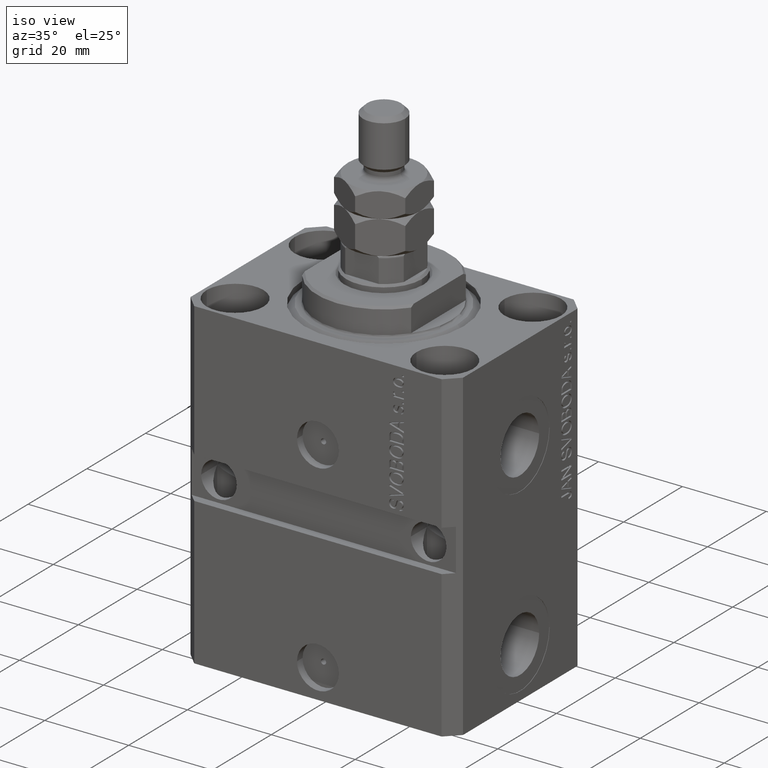
[diagram: clean part render]
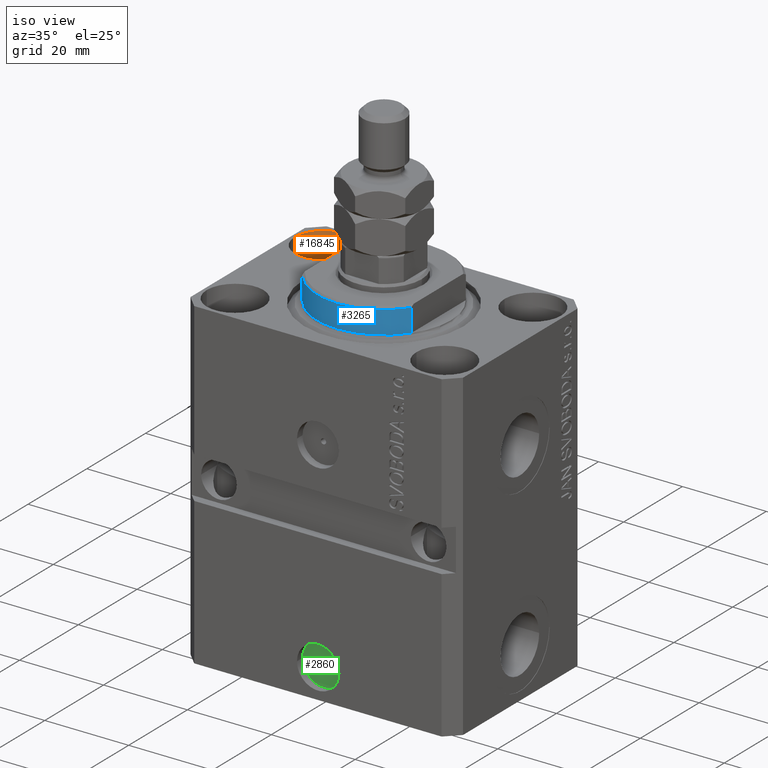
[diagram: same view with three faces highlighted in distinct colors, each labeled with its STEP entity id]
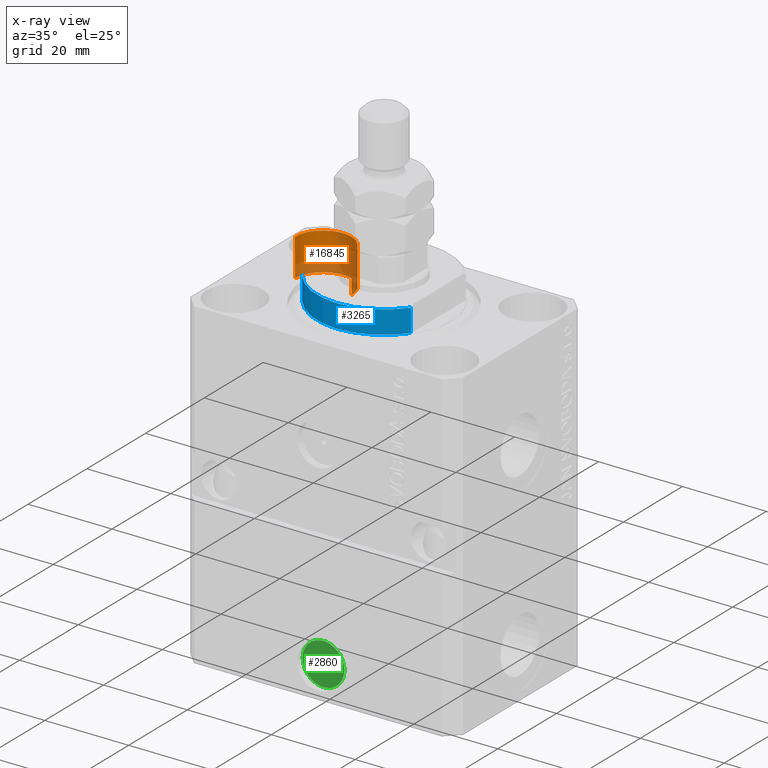
[diagram: x-ray of the same camera — body ghosted, the three highlighted faces saturated]
A machine part, iso view with three faces highlighted in distinct colors.
The next image is the same camera in x-ray (body ghosted, the three faces saturated) — at least one of them is partly hidden behind the body in this view.
Their STEP definitions:

[orange] entity #16845 — the highlighted cylindrical surface (edge-blend (fillet) strip) has radius 6.75 mm, axis along (0, 0, 1).
#1293 = EDGE_CURVE ( 'NONE', #20623, #17128, #8262, .T. ) ;
#3312 = DIRECTION ( 'NONE',  ( 1.000000000000000000, 0.000000000000000000, 0.000000000000000000 ) ) ;
#3445 = EDGE_CURVE ( 'NONE', #4481, #44326, #30897, .T. ) ;
#3545 = CARTESIAN_POINT ( 'NONE',  ( -25.00000000000000355, 15.00000000000000000, -9.000000000000000000 ) ) ;
#4481 = VERTEX_POINT ( 'NONE', #9248 ) ;
#4975 = DIRECTION ( 'NONE',  ( -0.000000000000000000, -0.000000000000000000, 1.000000000000000000 ) ) ;
#5375 = CARTESIAN_POINT ( 'NONE',  ( -25.00000000000000355, 15.00000000000000000, 0.000000000000000000 ) ) ;
#6061 = DIRECTION ( 'NONE',  ( 1.000000000000000000, 0.000000000000000000, 0.000000000000000000 ) ) ;
#6601 = FACE_OUTER_BOUND ( 'NONE', #17981, .T. ) ;
#7077 = CIRCLE ( 'NONE', #38625, 6.750000000022533087 ) ;
#7723 = CARTESIAN_POINT ( 'NONE',  ( -18.24999999997747224, 15.00000000000000000, 0.000000000000000000 ) ) ;
#7962 = CARTESIAN_POINT ( 'NONE',  ( -25.00000000000000355, 15.00000000000000000, -9.000000000000000000 ) ) ;
#8262 = LINE ( 'NONE', #22617, #17613 ) ;
#8889 = DIRECTION ( 'NONE',  ( 0.000000000000000000, 0.000000000000000000, 1.000000000000000000 ) ) ;
#9248 = CARTESIAN_POINT ( 'NONE',  ( -18.24999999997747224, 15.00000000000000000, -9.000000000000000000 ) ) ;
#9930 = AXIS2_PLACEMENT_3D ( 'NONE', #5375, #8889, #6061 ) ;
#11455 = CIRCLE ( 'NONE', #9930, 6.750000000022533087 ) ;
#14735 = CARTESIAN_POINT ( 'NONE',  ( -31.75000000002253842, 15.00000000000000000, -9.000000000000000000 ) ) ;
#15256 = DIRECTION ( 'NONE',  ( 0.000000000000000000, 0.000000000000000000, 1.000000000000000000 ) ) ;
#16845 = ADVANCED_FACE ( 'NONE', ( #6601 ), #21422, .F. ) ;
#17128 = VERTEX_POINT ( 'NONE', #46319 ) ;
#17613 = VECTOR ( 'NONE', #4975, 1000.000000000000000 ) ;
#17981 = EDGE_LOOP ( 'NONE', ( #43919, #24571, #44410, #31969 ) ) ;
#20623 = VERTEX_POINT ( 'NONE', #14735 ) ;
#20767 = DIRECTION ( 'NONE',  ( -0.000000000000000000, -0.000000000000000000, 1.000000000000000000 ) ) ;
#21422 = CYLINDRICAL_SURFACE ( 'NONE', #32243, 6.750000000022533087 ) ;
#22617 = CARTESIAN_POINT ( 'NONE',  ( -31.75000000002253842, 15.00000000000000000, -9.000000000000000000 ) ) ;
#24571 = ORIENTED_EDGE ( 'NONE', *, *, #44327, .F. ) ;
#30343 = VECTOR ( 'NONE', #20767, 1000.000000000000000 ) ;
#30897 = LINE ( 'NONE', #37745, #30343 ) ;
#31969 = ORIENTED_EDGE ( 'NONE', *, *, #36050, .T. ) ;
#32243 = AXIS2_PLACEMENT_3D ( 'NONE', #3545, #35555, #3312 ) ;
#35555 = DIRECTION ( 'NONE',  ( -0.000000000000000000, -0.000000000000000000, 1.000000000000000000 ) ) ;
#36050 = EDGE_CURVE ( 'NONE', #44326, #17128, #11455, .T. ) ;
#36685 = DIRECTION ( 'NONE',  ( 1.000000000000000000, 0.000000000000000000, 0.000000000000000000 ) ) ;
#37745 = CARTESIAN_POINT ( 'NONE',  ( -18.24999999997747224, 15.00000000000000000, -9.000000000000000000 ) ) ;
#38625 = AXIS2_PLACEMENT_3D ( 'NONE', #7962, #15256, #36685 ) ;
#43919 = ORIENTED_EDGE ( 'NONE', *, *, #1293, .F. ) ;
#44326 = VERTEX_POINT ( 'NONE', #7723 ) ;
#44327 = EDGE_CURVE ( 'NONE', #4481, #20623, #7077, .T. ) ;
#44410 = ORIENTED_EDGE ( 'NONE', *, *, #3445, .T. ) ;
#46319 = CARTESIAN_POINT ( 'NONE',  ( -31.75000000002253842, 15.00000000000000000, 0.000000000000000000 ) ) ;

[blue] entity #3265 — the highlighted cylindrical surface (partial cylindrical patch) has radius 16 mm, axis along (0, 0, -1).
#625 = CARTESIAN_POINT ( 'NONE',  ( 13.00000000000000000, -9.327379053088815652, -6.000000000000023981 ) ) ;
#913 = EDGE_CURVE ( 'NONE', #25331, #34528, #12785, .T. ) ;
#1069 = CARTESIAN_POINT ( 'NONE',  ( 13.00000000000000000, -9.327379053088815652, -0.4999999999999995559 ) ) ;
#1112 = DIRECTION ( 'NONE',  ( -1.000000000000000000, 0.000000000000000000, 0.000000000000000000 ) ) ;
#1344 = DIRECTION ( 'NONE',  ( 0.000000000000000000, 0.000000000000000000, 1.000000000000000000 ) ) ;
#3183 = CARTESIAN_POINT ( 'NONE',  ( -13.00000000000000000, -9.327379053088815652, -0.4999999999999995559 ) ) ;
#3265 = ADVANCED_FACE ( 'NONE', ( #17531 ), #14000, .T. ) ;
#6374 = CIRCLE ( 'NONE', #42472, 16.00000000000000000 ) ;
#6714 = EDGE_CURVE ( 'NONE', #34528, #21735, #6374, .T. ) ;
#8658 = ORIENTED_EDGE ( 'NONE', *, *, #913, .T. ) ;
#9550 = CARTESIAN_POINT ( 'NONE',  ( 13.00000000000000000, -9.327379053088813876, -6.500000000000000000 ) ) ;
#10468 = DIRECTION ( 'NONE',  ( 1.000000000000000000, 0.000000000000000000, 0.000000000000000000 ) ) ;
#11500 = VECTOR ( 'NONE', #24129, 1000.000000000000000 ) ;
#12785 = LINE ( 'NONE', #30668, #44652 ) ;
#14000 = CYLINDRICAL_SURFACE ( 'NONE', #32584, 16.00000000000000000 ) ;
#15616 = DIRECTION ( 'NONE',  ( 0.000000000000000000, 0.000000000000000000, -1.000000000000000000 ) ) ;
#17296 = ORIENTED_EDGE ( 'NONE', *, *, #27186, .F. ) ;
#17531 = FACE_OUTER_BOUND ( 'NONE', #19697, .T. ) ;
#17860 = ORIENTED_EDGE ( 'NONE', *, *, #20122, .T. ) ;
#19697 = EDGE_LOOP ( 'NONE', ( #17296, #17860, #8658, #44957 ) ) ;
#20122 = EDGE_CURVE ( 'NONE', #22492, #25331, #29223, .T. ) ;
#20503 = CARTESIAN_POINT ( 'NONE',  ( 0.000000000000000000, 0.000000000000000000, -0.4999999999999995559 ) ) ;
#21735 = VERTEX_POINT ( 'NONE', #625 ) ;
#22492 = VERTEX_POINT ( 'NONE', #1069 ) ;
#24129 = DIRECTION ( 'NONE',  ( 0.000000000000000000, 0.000000000000000000, -1.000000000000000000 ) ) ;
#24413 = CARTESIAN_POINT ( 'NONE',  ( -13.00000000000000000, -9.327379053088815652, -6.000000000000023981 ) ) ;
#25331 = VERTEX_POINT ( 'NONE', #3183 ) ;
#27186 = EDGE_CURVE ( 'NONE', #22492, #21735, #27677, .T. ) ;
#27677 = LINE ( 'NONE', #9550, #11500 ) ;
#28360 = DIRECTION ( 'NONE',  ( -0.000000000000000000, -0.000000000000000000, 1.000000000000000000 ) ) ;
#29223 = CIRCLE ( 'NONE', #34502, 16.00000000000000000 ) ;
#30668 = CARTESIAN_POINT ( 'NONE',  ( -13.00000000000000000, -9.327379053088813876, -6.500000000000000000 ) ) ;
#31100 = DIRECTION ( 'NONE',  ( 1.000000000000000000, 0.000000000000000000, 0.000000000000000000 ) ) ;
#32584 = AXIS2_PLACEMENT_3D ( 'NONE', #35424, #28360, #10468 ) ;
#34502 = AXIS2_PLACEMENT_3D ( 'NONE', #20503, #41929, #31100 ) ;
#34528 = VERTEX_POINT ( 'NONE', #24413 ) ;
#35424 = CARTESIAN_POINT ( 'NONE',  ( 0.000000000000000000, 0.000000000000000000, -6.500000000000000000 ) ) ;
#40663 = CARTESIAN_POINT ( 'NONE',  ( 0.000000000000000000, 0.000000000000000000, -6.000000000000023981 ) ) ;
#41929 = DIRECTION ( 'NONE',  ( -0.000000000000000000, -0.000000000000000000, -1.000000000000000000 ) ) ;
#42472 = AXIS2_PLACEMENT_3D ( 'NONE', #40663, #1344, #1112 ) ;
#44652 = VECTOR ( 'NONE', #15616, 1000.000000000000000 ) ;
#44957 = ORIENTED_EDGE ( 'NONE', *, *, #6714, .T. ) ;

[green] entity #2860 — the highlighted planar face has unit normal (0, -1, 0).
#255 = EDGE_CURVE ( 'NONE', #2274, #3340, #1793, .T. ) ;
#631 = DIRECTION ( 'NONE',  ( 1.000000000000000000, 1.176083712526788232E-16, 0.000000000000000000 ) ) ;
#1207 = DIRECTION ( 'NONE',  ( 1.176083712526788232E-16, -1.000000000000000000, 0.000000000000000000 ) ) ;
#1793 = CIRCLE ( 'NONE', #11567, 0.6250000000000038858 ) ;
#1807 = CARTESIAN_POINT ( 'NONE',  ( 2.422732447805124080E-15, -20.59999999999949694, -69.99999999999998579 ) ) ;
#2036 = DIRECTION ( 'NONE',  ( 1.000000000000000000, 0.000000000000000000, 0.000000000000000000 ) ) ;
#2274 = VERTEX_POINT ( 'NONE', #15667 ) ;
#2860 = ADVANCED_FACE ( 'NONE', ( #14753, #39242 ), #25333, .T. ) ;
#3084 = ORIENTED_EDGE ( 'NONE', *, *, #13157, .T. ) ;
#3340 = VERTEX_POINT ( 'NONE', #29980 ) ;
#4764 = CIRCLE ( 'NONE', #16008, 5.000000000000005329 ) ;
#7220 = VERTEX_POINT ( 'NONE', #26861 ) ;
#7966 = ORIENTED_EDGE ( 'NONE', *, *, #41508, .F. ) ;
#8357 = CARTESIAN_POINT ( 'NONE',  ( 2.422732447805124080E-15, -20.59999999999949694, -69.99999999999998579 ) ) ;
#8475 = CARTESIAN_POINT ( 'NONE',  ( 2.422732447805124080E-15, -20.59999999999949694, -69.47499999999999432 ) ) ;
#9254 = AXIS2_PLACEMENT_3D ( 'NONE', #23440, #34281, #2036 ) ;
#10753 = DIRECTION ( 'NONE',  ( 1.176083712526788232E-16, -1.000000000000000000, 0.000000000000000000 ) ) ;
#11567 = AXIS2_PLACEMENT_3D ( 'NONE', #8475, #1207, #36978 ) ;
#11719 = DIRECTION ( 'NONE',  ( 1.000000000000000000, 0.000000000000000000, 0.000000000000000000 ) ) ;
#13157 = EDGE_CURVE ( 'NONE', #7220, #39192, #26867, .T. ) ;
#14753 = FACE_BOUND ( 'NONE', #27120, .T. ) ;
#15667 = CARTESIAN_POINT ( 'NONE',  ( -0.6250000000000015543, -20.59999999999949694, -69.47499999999999432 ) ) ;
#16008 = AXIS2_PLACEMENT_3D ( 'NONE', #1807, #43952, #11719 ) ;
#21353 = CIRCLE ( 'NONE', #9254, 0.6250000000000038858 ) ;
#23420 = ORIENTED_EDGE ( 'NONE', *, *, #255, .F. ) ;
#23440 = CARTESIAN_POINT ( 'NONE',  ( 2.422732447805124080E-15, -20.59999999999949694, -69.47499999999999432 ) ) ;
#25333 = PLANE ( 'NONE',  #42441 ) ;
#26249 = DIRECTION ( 'NONE',  ( 1.000000000000000000, 0.000000000000000000, 0.000000000000000000 ) ) ;
#26861 = CARTESIAN_POINT ( 'NONE',  ( 5.000000000000007994, -20.59999999999949694, -69.99999999999998579 ) ) ;
#26867 = CIRCLE ( 'NONE', #42637, 5.000000000000005329 ) ;
#27120 = EDGE_LOOP ( 'NONE', ( #7966, #23420 ) ) ;
#27413 = ORIENTED_EDGE ( 'NONE', *, *, #42233, .T. ) ;
#29980 = CARTESIAN_POINT ( 'NONE',  ( 0.6250000000000063283, -20.59999999999949694, -69.47499999999999432 ) ) ;
#34281 = DIRECTION ( 'NONE',  ( 1.176083712526788232E-16, -1.000000000000000000, 0.000000000000000000 ) ) ;
#36978 = DIRECTION ( 'NONE',  ( 1.000000000000000000, 0.000000000000000000, 0.000000000000000000 ) ) ;
#38551 = CARTESIAN_POINT ( 'NONE',  ( -5.000000000000002665, -20.59999999999949694, -69.99999999999998579 ) ) ;
#39192 = VERTEX_POINT ( 'NONE', #38551 ) ;
#39242 = FACE_OUTER_BOUND ( 'NONE', #42184, .T. ) ;
#39482 = CARTESIAN_POINT ( 'NONE',  ( 2.422732447805124080E-15, -20.59999999999949694, -69.99999999999998579 ) ) ;
#41508 = EDGE_CURVE ( 'NONE', #3340, #2274, #21353, .T. ) ;
#41537 = DIRECTION ( 'NONE',  ( 1.176083712526788232E-16, -1.000000000000000000, 0.000000000000000000 ) ) ;
#42184 = EDGE_LOOP ( 'NONE', ( #3084, #27413 ) ) ;
#42233 = EDGE_CURVE ( 'NONE', #39192, #7220, #4764, .T. ) ;
#42441 = AXIS2_PLACEMENT_3D ( 'NONE', #39482, #10753, #631 ) ;
#42637 = AXIS2_PLACEMENT_3D ( 'NONE', #8357, #41537, #26249 ) ;
#43952 = DIRECTION ( 'NONE',  ( 1.176083712526788232E-16, -1.000000000000000000, 0.000000000000000000 ) ) ;